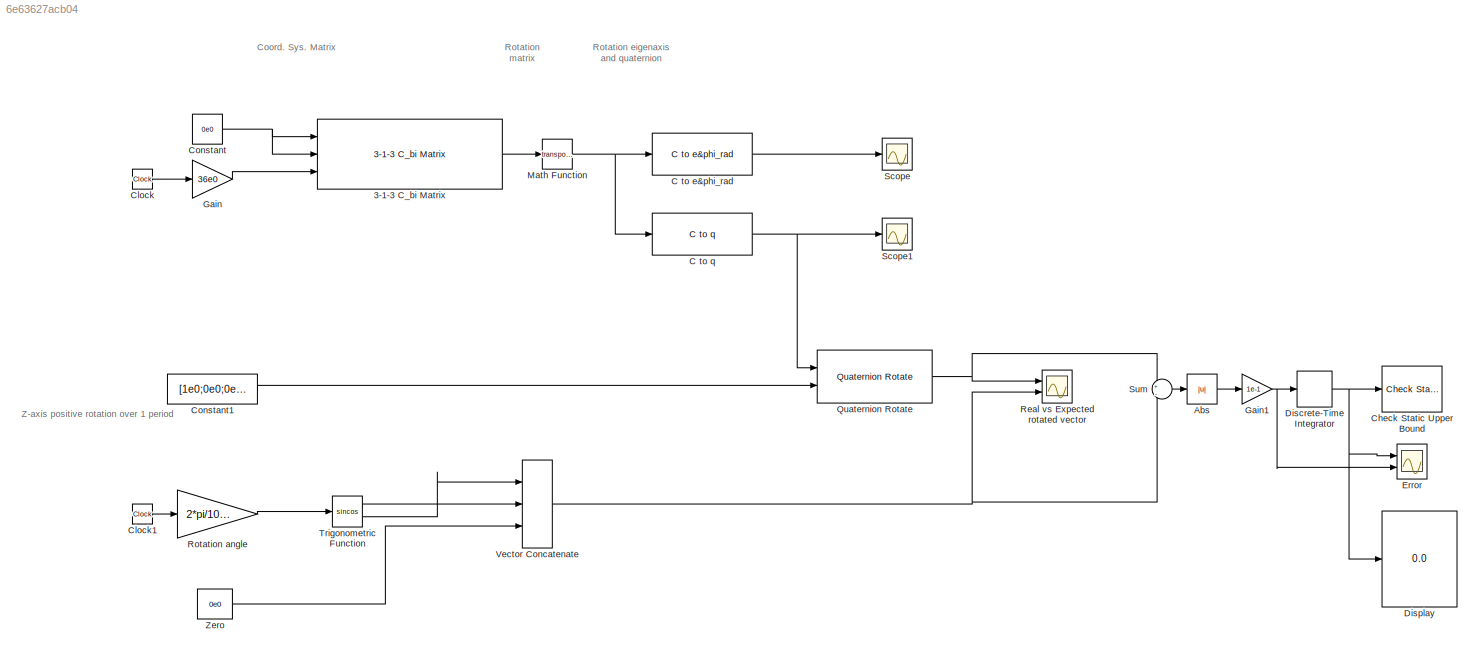
MODEL slx_6e63627acb04
KIND model
CONFIG AbsTol = auto
CONFIG EnableMultiTasking = off
CONFIG FixedStep = auto
CONFIG MaxStep = auto
CONFIG MinStep = auto
CONFIG RelTol = 1e-3
CONFIG SampleTimeConstraint = Unconstrained
CONFIG Solver = VariableStepAuto
CONFIG SolverName = VariableStepAuto
CONFIG StartTime = 0.0
CONFIG StopTime = 10.0
BLOCK [Reference] 3-1-3 C_bi Matrix  REF=blocklib/3-1-3 C_bi Matrix  (lib defined in mdl_0f6d77dcc548, slx_4f395834c8e9, +4 more)
  Ports = [3, 1]
  SourceBlock = blocklib/3-1-3 C_bi Matrix
  SourceProductName = Custom Library
  Tag = text(.05,.5,'{\itEquation:}  \Sigma \alpha^2 + \n\beta^2 \rightarrow \infty, \Pi, \phi_3 = {\bfcool}', \n'hor','left','texmode','on')
BLOCK [Abs] Abs
  SaturateOnIntegerOverflow = off
  ZeroCross = off
BLOCK [Reference] C to e&phi_rad  REF=blocklib/C to e&phi_rad  (lib defined in mdl_0f6d77dcc548, slx_4f395834c8e9, +4 more)
  Ports = [1, 1]
  SourceBlock = blocklib/C to e&phi_rad
  SourceProductName = Custom Library
BLOCK [Reference] C to q  REF=blocklib/C to q  (lib defined in mdl_0f6d77dcc548, slx_4f395834c8e9, +4 more)
  Ports = [1, 1]
  SourceBlock = blocklib/C to q
  SourceProductName = Custom Library
BLOCK [Reference] Check Static Upper Bound  REF=simulink/Model
Verification/Check Static 
Upper Bound
  Description = u <= 1e-6
  Ports = [1]
  SourceBlock = simulink/Model\nVerification/Check Static \nUpper Bound
  SourceProductBaseCode = SL
  SourceProductName = Simulink
  SourceType = Checks_SMax
BLOCK [Clock] Clock
BLOCK [Clock] Clock1
BLOCK [Constant] Constant
  Value = 0e0
BLOCK [Constant] Constant1
  Value = [1e0;0e0;0e0]
BLOCK [DiscreteIntegrator] Discrete-Time Integrator
  ICPrevOutput = DiscIntNeverNeededParam
  ICPrevScaledInput = DiscIntNeverNeededParam
  InitialCondition = [0e0;0e0;0e0]
  InitialConditionSetting = Auto
  IntegratorMethod = Accumulation: Forward Euler
  Ports = [1, 1]
  SampleTime = -1
BLOCK [Display] Display
  Decimation = 1
  Ports = [1]
BLOCK [Scope] Error
  Floating = off
  NumInputPorts = 2
  Ports = [2]
  ScopeSpecificationString = Simulink.scopes.TimeScopeBlockCfg('CurrentConfiguration', extmgr.ConfigurationSet(extmgr.Configuration('Core','General UI',true),extmgr.Configuration('Core','Source UI',true),extmgr.Configuration('Sources','WiredSimulink',true,'DataLoggingVariableName','ScopeData3'),extmgr.Configuration('Visuals','Time Domain',true,'SerializedDisplays',{struct('MinYLimReal','-0.00000000000000009','MaxYLimReal','0....<+2379ch>
BLOCK [Gain] Gain
  Gain = 36e0
  OutDataTypeStr = Inherit: Inherit via internal rule
  ParamDataTypeStr = Inherit: Inherit via internal rule
  SaturateOnIntegerOverflow = off
BLOCK [Gain] Gain1
  Gain = 1e-1
  OutDataTypeStr = Inherit: Inherit via internal rule
  ParamDataTypeStr = Inherit: Inherit via internal rule
  SaturateOnIntegerOverflow = off
BLOCK [Math] Math Function
  Operator = transpose
  Ports = [1, 1]
  SignedPower = off
BLOCK [Reference] Quaternion Rotate  REF=blocklib/Quaternion Rotate  (lib defined in mdl_0f6d77dcc548, slx_4f395834c8e9, +4 more)
  Ports = [2, 1]
  SourceBlock = blocklib/Quaternion Rotate
  SourceProductName = Custom Library
BLOCK [Scope] Real vs Expected rotated vector
  Floating = off
  NumInputPorts = 2
  Ports = [2]
  ScopeSpecificationString = Simulink.scopes.TimeScopeBlockCfg('CurrentConfiguration', extmgr.ConfigurationSet(extmgr.Configuration('Core','General UI',true),extmgr.Configuration('Core','Source UI',true),extmgr.Configuration('Sources','WiredSimulink',true,'DataLoggingVariableName','ScopeData2'),extmgr.Configuration('Visuals','Time Domain',true,'SerializedDisplays',{struct('MinYLimReal','-1.25','MaxYLimReal','1.25','YLabelReal...<+2199ch>
BLOCK [Gain] Rotation angle
  Gain = 2*pi/10e0
  OutDataTypeStr = Inherit: Inherit via internal rule
  ParamDataTypeStr = Inherit: Inherit via internal rule
  SaturateOnIntegerOverflow = off
BLOCK [Scope] Scope
  Floating = off
  NumInputPorts = 1
  Ports = [1]
  ScopeSpecificationString = Simulink.scopes.TimeScopeBlockCfg('CurrentConfiguration', extmgr.ConfigurationSet(extmgr.Configuration('Core','General UI',true),extmgr.Configuration('Core','Source UI',true),extmgr.Configuration('Sources','WiredSimulink',true),extmgr.Configuration('Visuals','Time Domain',true,'SerializedDisplays',{struct('MinYLimReal','-1.42687','MaxYLimReal','3.42656','YLabelReal','','MinYLimMag','0.00000','MaxY...<+1493ch>
BLOCK [Scope] Scope1
  Floating = off
  NumInputPorts = 1
  Ports = [1]
  ScopeSpecificationString = Simulink.scopes.TimeScopeBlockCfg('CurrentConfiguration', extmgr.ConfigurationSet(extmgr.Configuration('Core','General UI',true),extmgr.Configuration('Core','Source UI',true),extmgr.Configuration('Sources','WiredSimulink',true,'DataLoggingVariableName','ScopeData1'),extmgr.Configuration('Visuals','Time Domain',true,'SerializedDisplays',{struct('MinYLimReal','-1.24778','MaxYLimReal','1.24975','YLab...<+1499ch>
BLOCK [Sum] Sum
  IconShape = round
  InputSameDT = off
  Inputs = +|-
  OutDataTypeStr = Inherit: Inherit via internal rule
  Ports = [2, 1]
  SaturateOnIntegerOverflow = off
BLOCK [Trigonometry] Trigonometric Function
  Operator = sincos
  Ports = [1, 2]
BLOCK [Concatenate] Vector Concatenate
  NumInputs = 3
  Ports = [3, 1]
BLOCK [Constant] Zero
  Value = 0e0
ANNOTATION (root): Coord. Sys. Matrix
ANNOTATION (root): Rotation matrix
ANNOTATION (root): Rotation eigenaxis and quaternion
ANNOTATION (root): Z-axis positive rotation over 1 period
LINE 3-1-3 C_bi Matrix:1 -> Math Function:1
LINE Abs:1 -> Gain1:1
LINE C to e&phi_rad:1 -> Scope:1
NET C to q:1 -> Quaternion Rotate:1, Scope1:1
LINE Clock1:1 -> Rotation angle:1
LINE Clock:1 -> Gain:1
LINE Constant1:1 -> Quaternion Rotate:2
NET Constant:1 -> 3-1-3 C_bi Matrix:1, 3-1-3 C_bi Matrix:2
NET Discrete-Time Integrator:1 -> Check Static Upper Bound:1, Display:1, Error:1
NET Gain1:1 -> Discrete-Time Integrator:1, Error:2
LINE Gain:1 -> 3-1-3 C_bi Matrix:3
NET Math Function:1 -> C to e&phi_rad:1, C to q:1
NET Quaternion Rotate:1 -> Real vs Expected rotated vector:1, Sum:1
LINE Rotation angle:1 -> Trigonometric Function:1
LINE Sum:1 -> Abs:1
LINE Trigonometric Function:1 -> Vector Concatenate:2
LINE Trigonometric Function:2 -> Vector Concatenate:1
NET Vector Concatenate:1 -> Real vs Expected rotated vector:2, Sum:2
LINE Zero:1 -> Vector Concatenate:3
note: NET lines group one-source signal fan-out (src -> all destinations, sorted); 1:1 wires keep LINE
